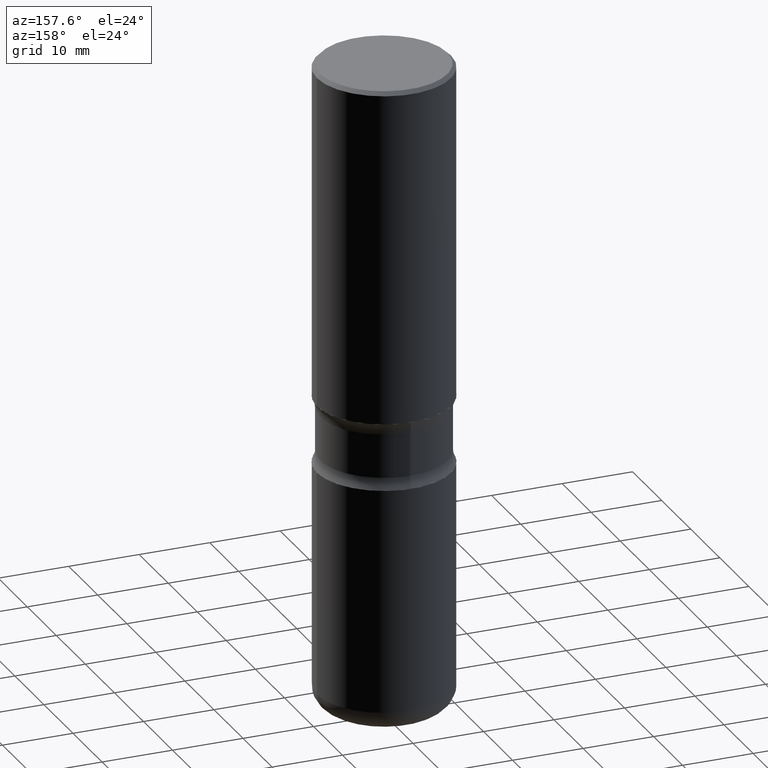
[diagram: clean part render]
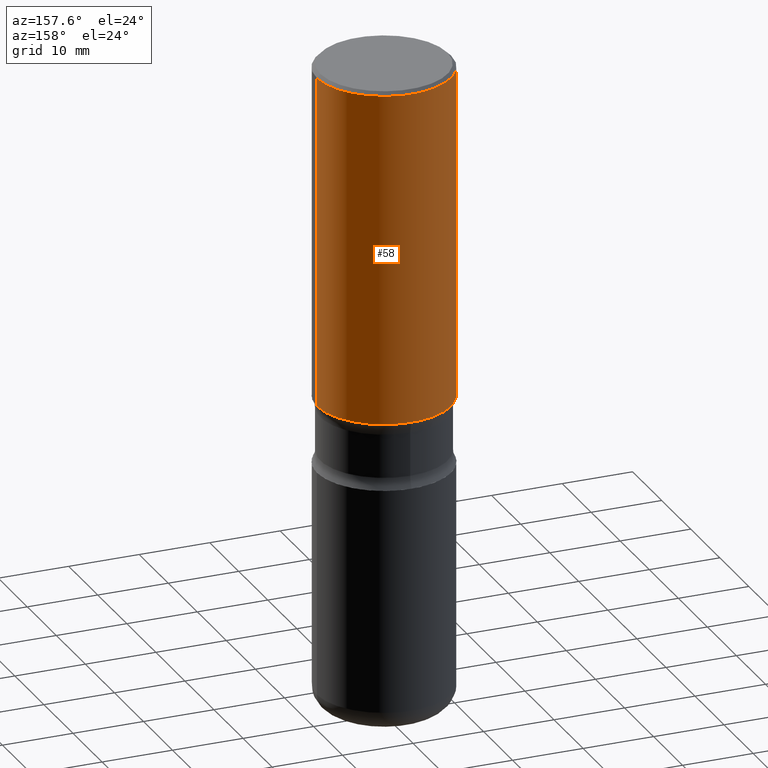
[diagram: same view with one face highlighted and labeled with its STEP entity id]
A machine part, auxiliary view. The second image highlights one B-rep face of the part: STEP entity #58.
In plain terms, the highlighted cylindrical surface (partial cylindrical patch) has radius 9.525 mm, axis along (-0, 0, 1).
Its self-contained STEP definition (entity closure, byte-faithful):
#23 = CARTESIAN_POINT ( 'NONE',  ( 4.585254011597132801E-29, -6.546527510330900285E-15, -1.875000000000000666 ) ) ;
#32 = DIRECTION ( 'NONE',  ( -2.445468806185136877E-29, 3.491481338843145188E-15, 1.000000000000000000 ) ) ;
#58 = ADVANCED_FACE ( 'NONE', ( #171 ), #379, .T. ) ;
#67 = VECTOR ( 'NONE', #423, 39.37007874015748143 ) ;
#74 = DIRECTION ( 'NONE',  ( 1.000000000000000000, -6.982962677686265922E-15, 4.876176775795935793E-29 ) ) ;
#77 = LINE ( 'NONE', #501, #176 ) ;
#99 = ORIENTED_EDGE ( 'NONE', *, *, #388, .T. ) ;
#109 = EDGE_CURVE ( 'NONE', #471, #492, #325, .T. ) ;
#164 = VERTEX_POINT ( 'NONE', #477 ) ;
#171 = FACE_OUTER_BOUND ( 'NONE', #478, .T. ) ;
#176 = VECTOR ( 'NONE', #32, 39.37007874015748143 ) ;
#220 = ORIENTED_EDGE ( 'NONE', *, *, #109, .F. ) ;
#227 = VERTEX_POINT ( 'NONE', #364 ) ;
#253 = CARTESIAN_POINT ( 'NONE',  ( 0.3750000000000003886, -2.618611004132352383E-15, 1.828566290923477884E-29 ) ) ;
#256 = CARTESIAN_POINT ( 'NONE',  ( 0.000000000000000000, 0.000000000000000000, 0.000000000000000000 ) ) ;
#292 = CARTESIAN_POINT ( 'NONE',  ( -0.3750000000000002220, 2.548781377355488296E-15, -0.02000000000000013572 ) ) ;
#293 = AXIS2_PLACEMENT_3D ( 'NONE', #348, #427, #346 ) ;
#302 = CARTESIAN_POINT ( 'NONE',  ( 0.3750000000000002220, -2.642516375941189606E-15, -0.02000000000000013572 ) ) ;
#325 = CIRCLE ( 'NONE', #293, 0.3750000000000002220 ) ;
#331 = DIRECTION ( 'NONE',  ( 1.000000000000000000, -6.982962677686265133E-15, 0.000000000000000000 ) ) ;
#339 = DIRECTION ( 'NONE',  ( -2.445468806185136597E-29, 3.491481338843145583E-15, 1.000000000000000000 ) ) ;
#346 = DIRECTION ( 'NONE',  ( 1.000000000000000000, -6.982962677686266711E-15, 0.000000000000000000 ) ) ;
#348 = CARTESIAN_POINT ( 'NONE',  ( 4.890937612370306439E-31, -6.982962677686338448E-17, -0.02000000000000013572 ) ) ;
#358 = CIRCLE ( 'NONE', #537, 0.3750000000000004441 ) ;
#364 = CARTESIAN_POINT ( 'NONE',  ( 0.3750000000000004441, -9.165138514463253457E-15, -1.875000000000000666 ) ) ;
#379 = CYLINDRICAL_SURFACE ( 'NONE', #536, 0.3750000000000003886 ) ;
#388 = EDGE_CURVE ( 'NONE', #227, #164, #358, .T. ) ;
#423 = DIRECTION ( 'NONE',  ( -2.445468806185136877E-29, 3.491481338843145188E-15, 1.000000000000000000 ) ) ;
#427 = DIRECTION ( 'NONE',  ( -2.445468806185136597E-29, 3.491481338843145583E-15, 1.000000000000000000 ) ) ;
#430 = ORIENTED_EDGE ( 'NONE', *, *, #468, .F. ) ;
#444 = ORIENTED_EDGE ( 'NONE', *, *, #513, .T. ) ;
#468 = EDGE_CURVE ( 'NONE', #227, #471, #556, .T. ) ;
#471 = VERTEX_POINT ( 'NONE', #302 ) ;
#477 = CARTESIAN_POINT ( 'NONE',  ( -0.3750000000000004441, -6.436433094535026432E-16, -1.875000000000000666 ) ) ;
#478 = EDGE_LOOP ( 'NONE', ( #99, #444, #220, #430 ) ) ;
#492 = VERTEX_POINT ( 'NONE', #292 ) ;
#501 = CARTESIAN_POINT ( 'NONE',  ( -0.3750000000000003886, 2.664535259100378458E-15, -1.844600658845591560E-29 ) ) ;
#513 = EDGE_CURVE ( 'NONE', #164, #492, #77, .T. ) ;
#534 = DIRECTION ( 'NONE',  ( -2.445468806185136597E-29, 3.491481338843145583E-15, 1.000000000000000000 ) ) ;
#536 = AXIS2_PLACEMENT_3D ( 'NONE', #256, #339, #74 ) ;
#537 = AXIS2_PLACEMENT_3D ( 'NONE', #23, #534, #331 ) ;
#556 = LINE ( 'NONE', #253, #67 ) ;